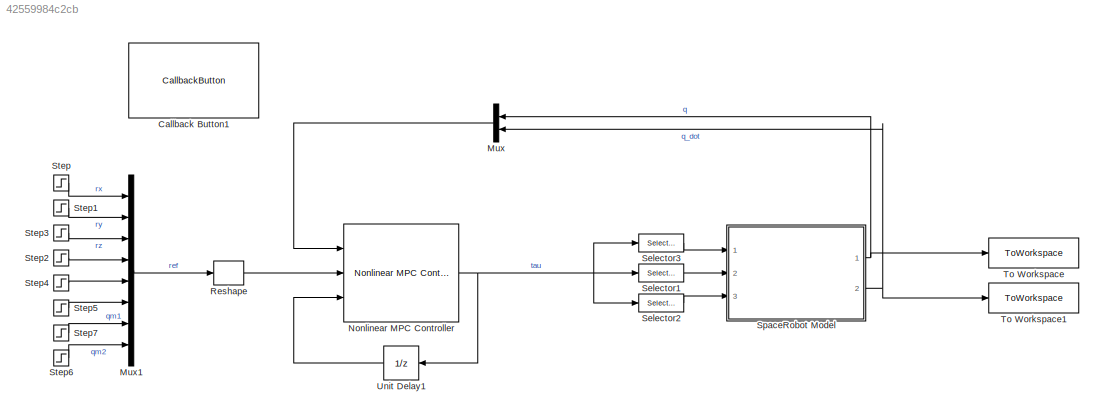
MODEL slx_42559984c2cb
KIND model
CONFIG AbsTol = auto
CONFIG EnableMultiTasking = off
CONFIG FixedStep = auto
CONFIG MaxStep = auto
CONFIG MinStep = auto
CONFIG RelTol = 1e-3
CONFIG SampleTimeConstraint = Unconstrained
CONFIG SolverName = ode45
CONFIG StartTime = 0.0
CONFIG StopTime = 10
BLOCK [CallbackButton] Callback Button1
  ButtonText = Animate results
  ClickFcn = close all\ntry\n    sr.animate(out.q, 'fps', 17, 'rate', 1); \ncatch\n    close all\nend
BLOCK [Mux] Mux
  DisplayOption = bar
  Inputs = 2
  NameLocation = top
  Ports = [2, 1]
BLOCK [Mux] Mux1
  DisplayOption = bar
  Inputs = 8
  Ports = [8, 1]
BLOCK [Reference] Nonlinear MPC Controller  REF=mpclib/Nonlinear MPC Controller  (lib defined in mdl_ae329e0e0455)
  Ports = [3, 1]
  SCDEnableBlockLinearizationSpecification = on
  SourceBlock = mpclib/Nonlinear MPC Controller
  SourceProductBaseCode = MP
  SourceType = NonlinearMPC
BLOCK [Reshape] Reshape
  OutputDimensionality = Row vector (2-D)
  Ports = [1, 1]
BLOCK [Selector] Selector1
  IndexOptions = Index vector (dialog)
  Indices = [4:6]
  OutputSizes = 1
  Ports = [1, 1]
BLOCK [Selector] Selector2
  IndexOptions = Index vector (dialog)
  Indices = [7:8]
  OutputSizes = 1
  Ports = [1, 1]
BLOCK [Selector] Selector3
  IndexOptions = Index vector (dialog)
  Indices = [1:3]
  OutputSizes = 1
  Ports = [1, 1]
BLOCK [SubSystem] SpaceRobot Model
  Ports = [3, 2]
  ReferencedSubsystem = SpaceRobot_Model
  RequestExecContextInheritance = off
  q_0 = zeros(8, 1)
  q_dot_0 = zeros(8, 1)
  spaceRobot = sr
BLOCK [Step] Step
  After = 0.5
  SampleTime = 0
  Time = 0.1
BLOCK [Step] Step1
  After = 0.5
  SampleTime = 0
  Time = 2
BLOCK [Step] Step2
  After = 0
  SampleTime = 0
BLOCK [Step] Step3
  After = 0
  SampleTime = 0
BLOCK [Step] Step4
  After = 0
  SampleTime = 0
BLOCK [Step] Step5
  After = 0
  SampleTime = 0
BLOCK [Step] Step6
  After = 0
  SampleTime = 0
BLOCK [Step] Step7
  After = pi/4
  SampleTime = 0
  Time = 5
BLOCK [ToWorkspace] To Workspace
  FixptAsFi = on
  MaxDataPoints = inf
  Ports = [1]
  SampleTime = -1
  SaveFormat = Timeseries
  VariableName = q
BLOCK [ToWorkspace] To Workspace1
  FixptAsFi = on
  MaxDataPoints = inf
  Ports = [1]
  SampleTime = -1
  SaveFormat = Timeseries
  VariableName = q_dot
BLOCK [UnitDelay] Unit Delay1
  HasFrameUpgradeWarning = on
  SampleTime = -1
LINE Mux1:1 -> Reshape:1
LINE Mux:1 -> Nonlinear MPC Controller:1
NET Nonlinear MPC Controller:1 -> Selector1:1, Selector2:1, Selector3:1, Unit Delay1:1
LINE Reshape:1 -> Nonlinear MPC Controller:2
LINE Selector1:1 -> SpaceRobot Model:2
LINE Selector2:1 -> SpaceRobot Model:3
LINE Selector3:1 -> SpaceRobot Model:1
NET SpaceRobot Model:1 -> Mux:1, To Workspace:1
NET SpaceRobot Model:2 -> Mux:2, To Workspace1:1
LINE Step1:1 -> Mux1:2
LINE Step2:1 -> Mux1:4
LINE Step3:1 -> Mux1:3
LINE Step4:1 -> Mux1:5
LINE Step5:1 -> Mux1:6
LINE Step6:1 -> Mux1:8
LINE Step7:1 -> Mux1:7
LINE Step:1 -> Mux1:1
LINE Unit Delay1:1 -> Nonlinear MPC Controller:3
note: NET lines group one-source signal fan-out (src -> all destinations, sorted); 1:1 wires keep LINE
